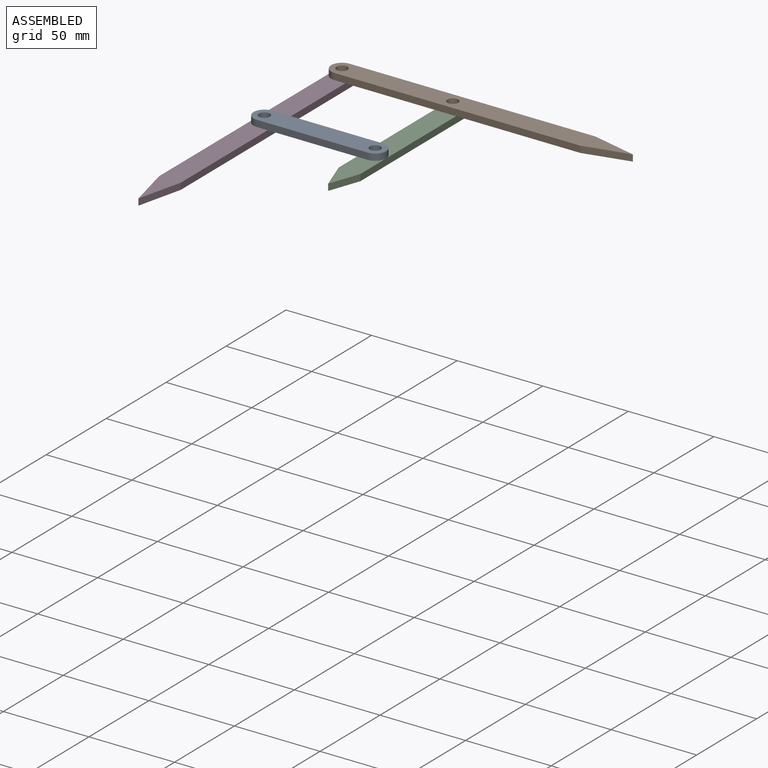
[diagram: assembled view]
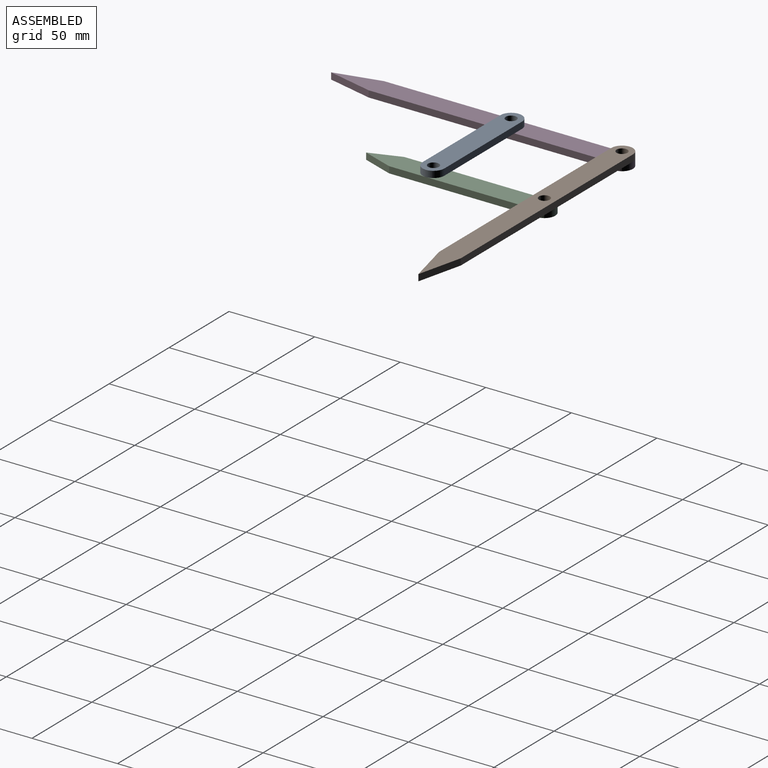
[diagram: assembled view, second angle]
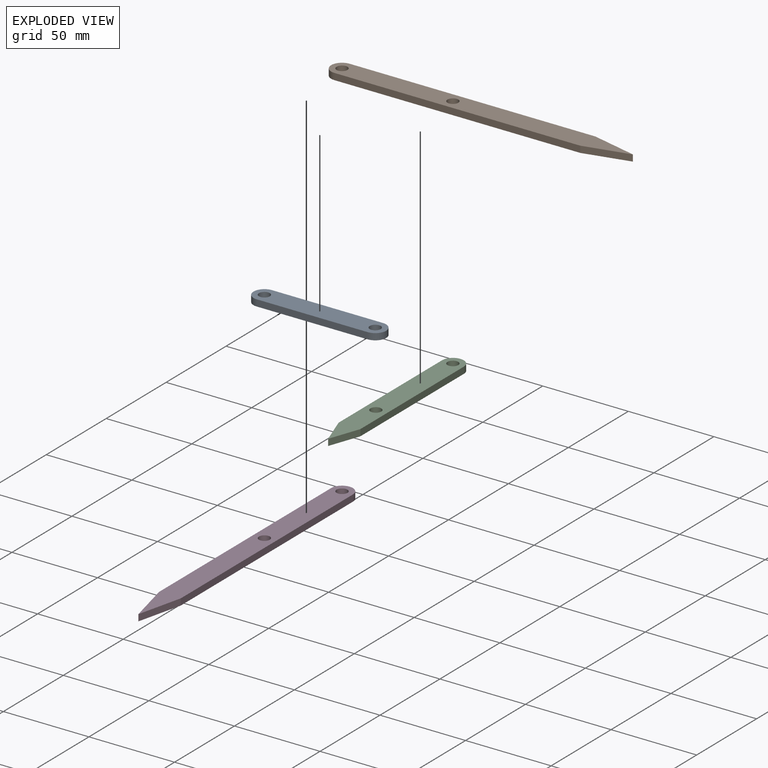
[diagram: exploded view]
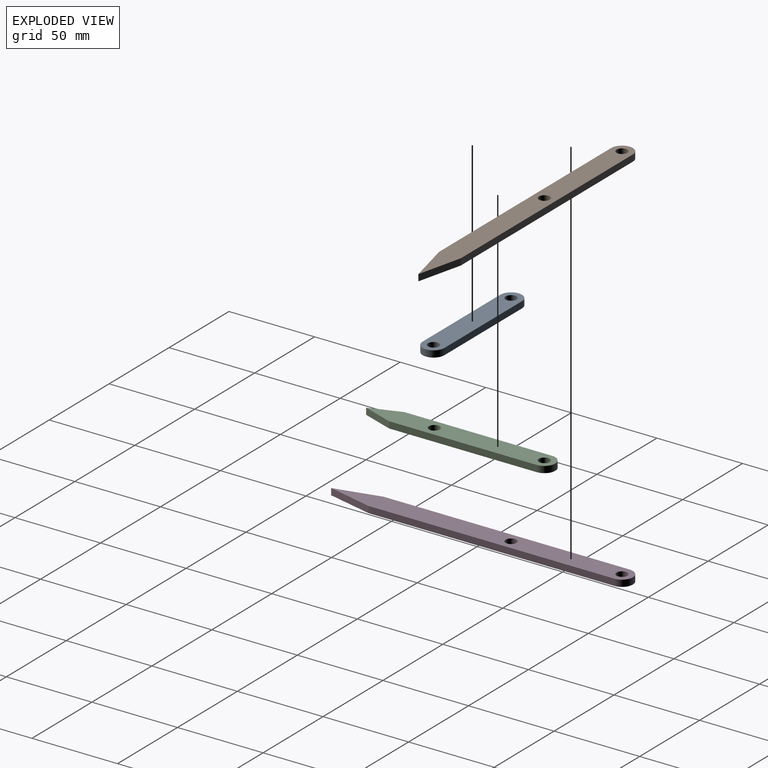
[diagram: exploded view, second angle]
ASSEMBLY  parts=4 mates=3
PART A: 8 faces, bbox 12.7x77.5x3.8 mm
  f0: plane 64.77x3.81mm, normal (1,0,0), area 246.8mm2, adj f1,f4,f6,f7
  f1: cylinder r=6.35mm len=12.7mm, axis (0,0,-1), area 76mm2, adj f0,f2,f6,f7
  f2: plane 64.77x3.81mm, normal (-1,0,0), area 246.8mm2, adj f1,f4,f6,f7
  f3: cylinder r=3.17mm len=6.35mm, axis (0,0,-1), area 76mm2, adj f6,f7
  f4: cylinder r=6.35mm len=12.7mm, axis (0,0,-1), area 76mm2, adj f0,f2,f6,f7
  f5: cylinder r=3.17mm len=6.35mm, axis (0,0,-1), area 76mm2, adj f6,f7
  f6: plane 77.47x12.7mm, normal (0,0,1), area 885.9mm2, adj f0,f1,f2,f3,f4,f5
  f7: plane 77.47x12.7mm, normal (0,0,-1), area 885.9mm2, adj f0,f1,f2,f3,f4,f5
PART B: 9 faces, bbox 12.7x176.3x3.8 mm
  f0: plane 143.58x3.81mm, normal (1,0,0), area 547mm2, adj f1,f5,f7,f8
  f1: cylinder r=6.35mm len=12.7mm, axis (0,0,-1), area 76mm2, adj f0,f2,f7,f8
  f2: plane 143.58x3.81mm, normal (-1,0,0), area 547mm2, adj f1,f3,f7,f8
  f3: plane 26.34x6.35mm, normal (-0.97,-0.23,0), area 103.2mm2, adj f2,f5,f7,f8
  f4: cylinder r=3.17mm len=6.35mm, axis (0,0,-1), area 76mm2, adj f7,f8
  f5: plane 26.34x6.35mm, normal (0.97,-0.23,0), area 103.2mm2, adj f0,f3,f7,f8
  f6: cylinder r=3.17mm len=6.35mm, axis (0,0,-1), area 76mm2, adj f7,f8
  f7: plane 176.28x12.7mm, normal (0,0,1), area 1990.8mm2, adj f0,f1,f2,f3,f4,f5,f6
  f8: plane 176.28x12.7mm, normal (0,0,-1), area 1990.8mm2, adj f0,f1,f2,f3,f4,f5,f6
PART C: 9 faces, bbox 12.7x110.5x3.8 mm
  f0: cylinder r=3.17mm len=6.35mm, axis (0,0,-1), area 76mm2, adj f2,f3
  f1: cylinder r=6.35mm len=12.7mm, axis (0,0,-1), area 76mm2, adj f2,f3,f6,f7
  f2: plane 110.49x12.7mm, normal (0,0,1), area 1209.3mm2, adj f0,f1,f4,f5,f6,f7,f8
  f3: plane 110.49x12.7mm, normal (0,0,-1), area 1209.3mm2, adj f0,f1,f4,f5,f6,f7,f8
  f4: plane 17.84x6.35mm, normal (-0.94,-0.34,0), area 72.2mm2, adj f2,f3,f5,f7
  f5: plane 17.84x6.35mm, normal (0.94,-0.34,0), area 72.2mm2, adj f2,f3,f4,f6
  f6: plane 86.3x3.81mm, normal (1,0,0), area 328.8mm2, adj f1,f2,f3,f5
  f7: plane 86.3x3.81mm, normal (-1,0,0), area 328.8mm2, adj f1,f2,f3,f4
  f8: cylinder r=3.17mm len=6.35mm, axis (0,0,-1), area 76mm2, adj f2,f3
PART D: same geometry as B
PLACE A rot(axis=(0,0,-1),90deg) t=(-18.6,19.22,0.38)mm
PLACE B rot(axis=(0,0,1),90deg) t=(33.98,83.99,0.38)mm
PLACE C t=(13.79,31.92,-3.43)mm
PLACE D t=(-50.98,-0.97,-3.43)mm
MATE pin_slot A.f5 <-> D.f6  axis (0,0,-1) through (-50.98,19.22,0.38)mm
MATE pin_slot C.f0 <-> B.f6  axis (0,0,1) through (13.79,83.99,0.38)mm
MATE pin_slot B.f4 <-> D.f4  axis (0,0,1) through (-50.98,83.99,4.19)mm
